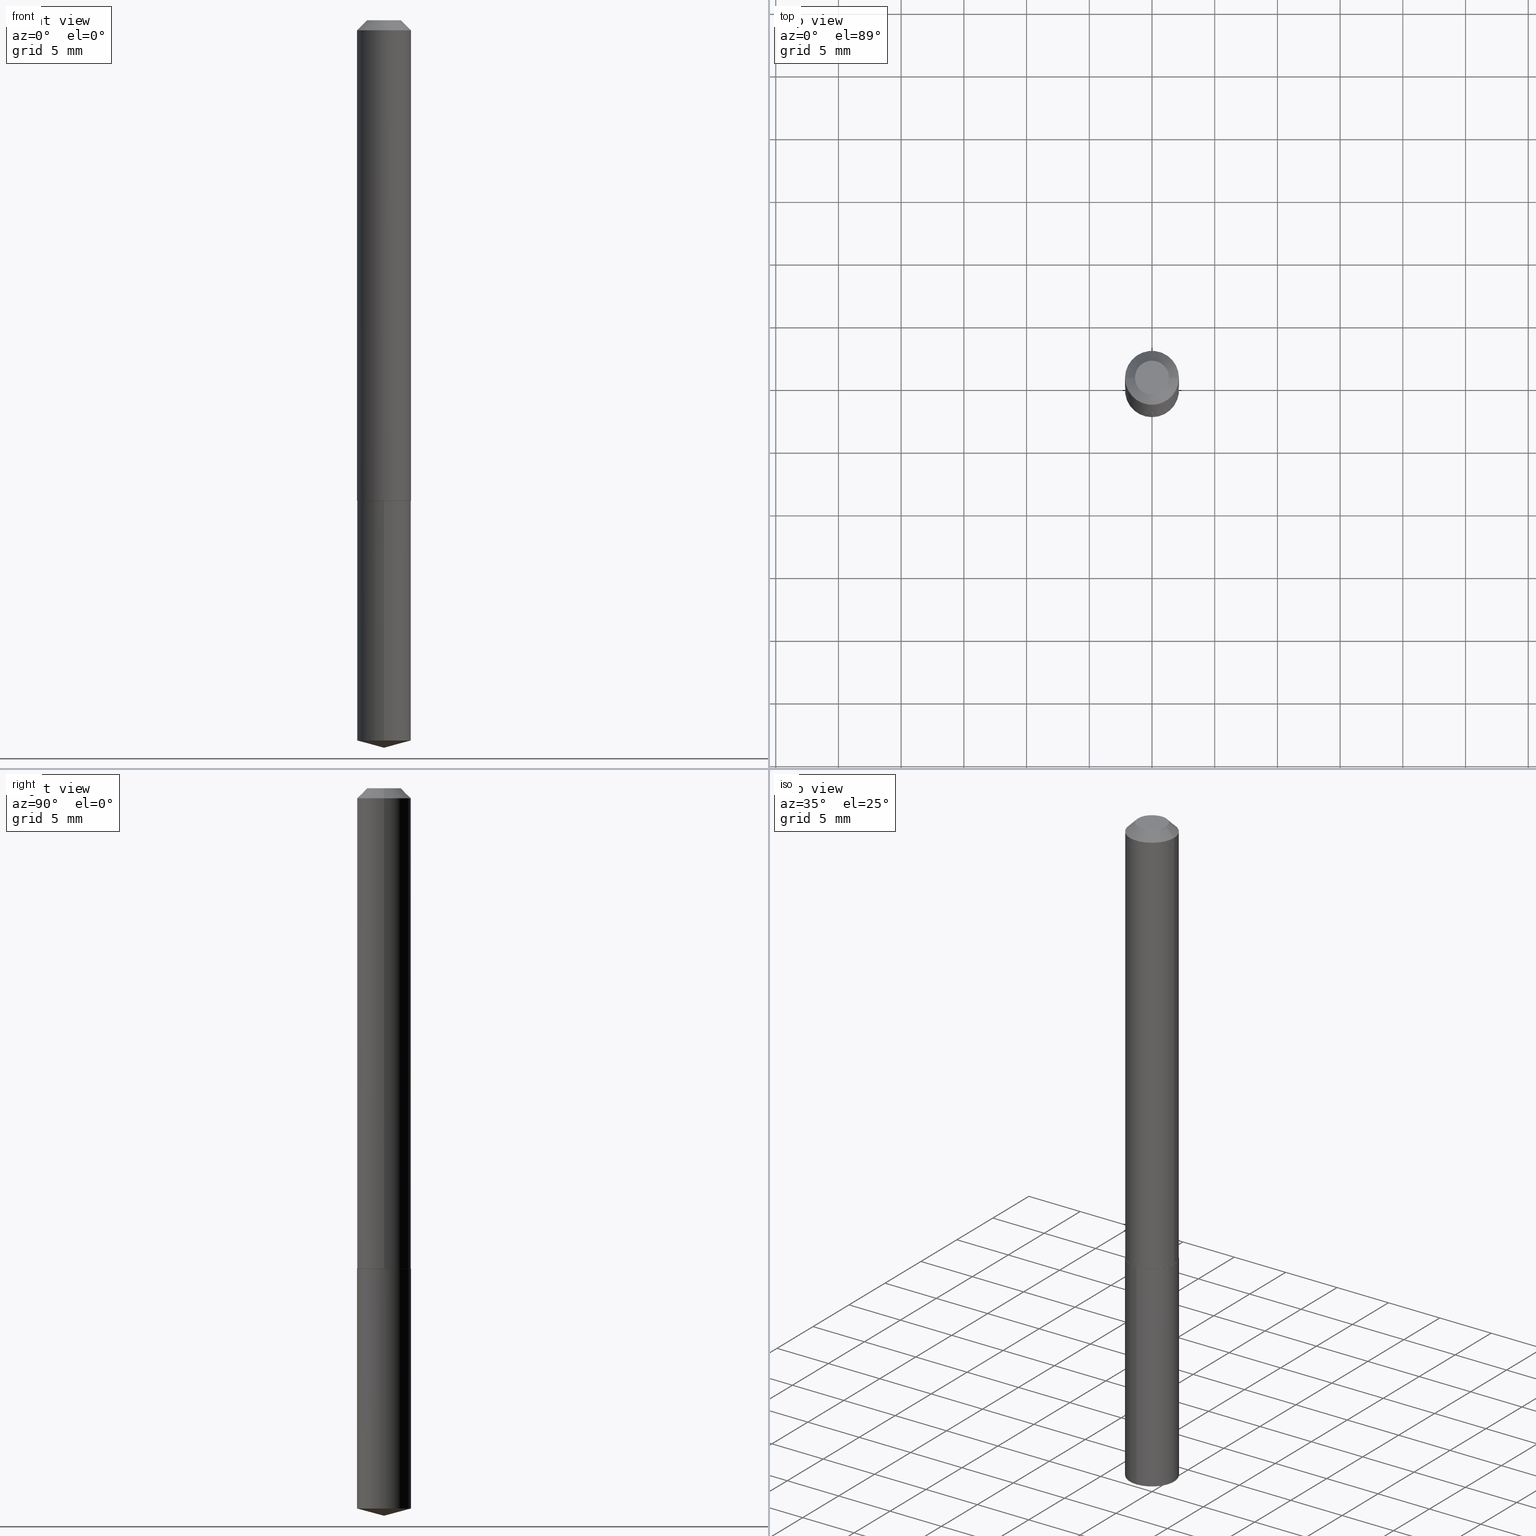
[diagram: canonical four-view strip — front | top / right | iso, engineering-drawing reading convention]
A machine part, canonical four-view strip (front | top / right | iso — engineering-drawing reading convention). The complete STEP part file that produces these views, byte-faithful:
ISO-10303-21;
HEADER;
FILE_DESCRIPTION (( 'STEP AP203' ),
    '1' );
FILE_NAME ('63051.STEP',
    '2024-04-23T08:46:22',
    ( '' ),
    ( '' ),
    'SwSTEP 2.0',
    'SolidWorks 2023',
    '' );
FILE_SCHEMA (( 'CONFIG_CONTROL_DESIGN' ));
ENDSEC;

DATA;
#1 = ADVANCED_FACE ( 'NONE', ( #94 ), #84, .T. ) ;
#2 = DESIGN_CONTEXT ( 'detailed design', #259, 'design' ) ;
#3 = VERTEX_POINT ( 'NONE', #327 ) ;
#4 = APPROVAL ( #52, 'UNSPECIFIED' ) ;
#5 = CALENDAR_DATE ( 2024, 23, 4 ) ;
#6 = PERSON_AND_ORGANIZATION ( #339, #67 ) ;
#7 = CARTESIAN_POINT ( 'NONE',  ( -0.08465000000000001690, 4.819989988272935042E-16, -0.03125000000000020123 ) ) ;
#8 = PERSON_AND_ORGANIZATION_ROLE ( 'creator' ) ;
#9 = VERTEX_POINT ( 'NONE', #299 ) ;
#10 = AXIS2_PLACEMENT_3D ( 'NONE', #365, #239, #341 ) ;
#11 = DIRECTION ( 'NONE',  ( -2.445468806185136877E-29, 3.491481338843145188E-15, 1.000000000000000000 ) ) ;
#12 = DIRECTION ( 'NONE',  ( 0.7071067811865452413, -7.319954787623248157E-15, -0.7071067811865497932 ) ) ;
#13 = ADVANCED_FACE ( 'NONE', ( #208 ), #57, .F. ) ;
#14 = APPROVAL_ROLE ( '' ) ;
#15 = DIRECTION ( 'NONE',  ( -2.445468806185136597E-29, 3.491481338843145583E-15, 1.000000000000000000 ) ) ;
#16 = AXIS2_PLACEMENT_3D ( 'NONE', #285, #68, #39 ) ;
#17 = MANIFOLD_SOLID_BREP ( 'Body-Move/Copy2[2]', #173 ) ;
#18 = AXIS2_PLACEMENT_3D ( 'NONE', #199, #40, #160 ) ;
#19 = EDGE_CURVE ( 'NONE', #88, #9, #139, .T. ) ;
#20 = CARTESIAN_POINT ( 'NONE',  ( 0.05340000000000000996, -5.281002702156046519E-16, 4.837354856663562123E-19 ) ) ;
#21 = EDGE_LOOP ( 'NONE', ( #233, #361, #349, #92 ) ) ;
#22 = ORIENTED_EDGE ( 'NONE', *, *, #381, .F. ) ;
#23 = DIRECTION ( 'NONE',  ( -1.000000000000000000, 6.982962677686265922E-15, -4.876176775795935793E-29 ) ) ;
#24 = DIRECTION ( 'NONE',  ( -2.445550995900255490E-29, 3.491363638493147218E-15, 1.000000000000000000 ) ) ;
#25 = DIRECTION ( 'NONE',  ( 1.000000000000000000, -6.982962677686265922E-15, 4.876176775795935793E-29 ) ) ;
#26 = AXIS2_PLACEMENT_3D ( 'NONE', #315, #357, #378 ) ;
#27 = CARTESIAN_POINT ( 'NONE',  ( 0.000000000000000000, 0.000000000000000000, 0.000000000000000000 ) ) ;
#28 = LINE ( 'NONE', #109, #99 ) ;
#29 = APPROVAL_ROLE ( '' ) ;
#30 = ADVANCED_FACE ( 'NONE', ( #260 ), #204, .F. ) ;
#31 = CARTESIAN_POINT ( 'NONE',  ( 5.584417872645754205E-29, -7.972528868499102598E-15, -2.283500000000000085 ) ) ;
#32 = AXIS2_PLACEMENT_3D ( 'NONE', #183, #304, #343 ) ;
#33 = AXIS2_PLACEMENT_3D ( 'NONE', #229, #129, #320 ) ;
#34 = DIRECTION ( 'NONE',  ( -2.445468806185136597E-29, 3.491481338843145583E-15, 1.000000000000000000 ) ) ;
#35 = EDGE_CURVE ( 'NONE', #242, #87, #50, .T. ) ;
#36 = CC_DESIGN_PERSON_AND_ORGANIZATION_ASSIGNMENT ( #74, #8, ( #344 ) ) ;
#37 = DIRECTION ( 'NONE',  ( 1.000000000000000000, -6.982962677686266711E-15, 0.000000000000000000 ) ) ;
#38 = ORIENTED_EDGE ( 'NONE', *, *, #197, .F. ) ;
#39 = DIRECTION ( 'NONE',  ( 1.000000000000000000, -6.982962677686268288E-15, 0.000000000000000000 ) ) ;
#40 = DIRECTION ( 'NONE',  ( -2.445468806185136597E-29, 3.491481338843145583E-15, 1.000000000000000000 ) ) ;
#41 = AXIS2_PLACEMENT_3D ( 'NONE', #355, #348, #44 ) ;
#42 = ORIENTED_EDGE ( 'NONE', *, *, #136, .F. ) ;
#43 = CALENDAR_DATE ( 2024, 23, 4 ) ;
#44 = DIRECTION ( 'NONE',  ( 1.000000000000000000, -6.982962677686266711E-15, 0.000000000000000000 ) ) ;
#45 = DIRECTION ( 'NONE',  ( 1.000000000000000000, -6.982962677686268288E-15, 0.000000000000000000 ) ) ;
#46 = EDGE_LOOP ( 'NONE', ( #38, #313, #170, #151 ) ) ;
#47 = CYLINDRICAL_SURFACE ( 'NONE', #105, 0.08465000000000001690 ) ;
#48 = CIRCLE ( 'NONE', #142, 0.05340000000000000996 ) ;
#49 = CIRCLE ( 'NONE', #146, 0.08465000000000001690 ) ;
#50 = LINE ( 'NONE', #143, #379 ) ;
#51 = ORIENTED_EDGE ( 'NONE', *, *, #381, .T. ) ;
#52 = APPROVAL_STATUS ( 'not_yet_approved' ) ;
#53 = EDGE_LOOP ( 'NONE', ( #113, #338, #284, #318 ) ) ;
#54 = ORIENTED_EDGE ( 'NONE', *, *, #153, .T. ) ;
#55 = CARTESIAN_POINT ( 'NONE',  ( 6.014744258209616094E-16, 0.08464999999999475722, -1.507900000000000240 ) ) ;
#56 = FACE_OUTER_BOUND ( 'NONE', #53, .T. ) ;
#57 = PLANE ( 'NONE',  #133 ) ;
#58 = ADVANCED_FACE ( 'NONE', ( #303 ), #125, .T. ) ;
#59 = CALENDAR_DATE ( 2024, 23, 4 ) ;
#60 = CARTESIAN_POINT ( 'NONE',  ( -1.182960040634188829E-47, 1.688953421129311321E-33, 4.837354856632064502E-19 ) ) ;
#61 = CARTESIAN_POINT ( 'NONE',  ( 6.014744258209803449E-16, 0.08464999999999213431, -2.260818100860706448 ) ) ;
#62 = CC_DESIGN_APPROVAL ( #89, ( #232 ) ) ;
#63 = DIRECTION ( 'NONE',  ( 1.000000000000000000, -6.982962677686266711E-15, 4.876223320448993211E-29 ) ) ;
#64 = DIRECTION ( 'NONE',  ( -6.982962677686265922E-15, -1.000000000000000000, 3.227227399485248397E-15 ) ) ;
#65 = PERSON_AND_ORGANIZATION_ROLE ( 'design_owner' ) ;
#66 = DATE_AND_TIME ( #5, #241 ) ;
#67 = ORGANIZATION ( 'UNSPECIFIED', 'UNSPECIFIED', '' ) ;
#68 = DIRECTION ( 'NONE',  ( -2.445468806185136597E-29, 3.491481338843145583E-15, 1.000000000000000000 ) ) ;
#69 = ADVANCED_FACE ( 'NONE', ( #312 ), #317, .T. ) ;
#70 = APPLICATION_PROTOCOL_DEFINITION ( 'international standard', 'config_control_design', 1994, #295 ) ;
#71 = EDGE_CURVE ( 'NONE', #347, #161, #48, .T. ) ;
#72 = DIRECTION ( 'NONE',  ( -2.445550995900255490E-29, 3.491363638493147218E-15, 1.000000000000000000 ) ) ;
#73 = ORIENTED_EDGE ( 'NONE', *, *, #153, .F. ) ;
#74 = PERSON_AND_ORGANIZATION ( #339, #67 ) ;
#75 = CARTESIAN_POINT ( 'NONE',  ( -0.08465000000000018343, -4.661584544351232390E-15, -1.507400000000000073 ) ) ;
#76 = CIRCLE ( 'NONE', #10, 0.05340000000000000996 ) ;
#77 = DIRECTION ( 'NONE',  ( 2.445468806185136597E-29, -3.491481338843145583E-15, -1.000000000000000000 ) ) ;
#78 = CARTESIAN_POINT ( 'NONE',  ( 3.686299678443475330E-29, -5.263058970172158007E-15, -1.507400000000000073 ) ) ;
#79 = DIRECTION ( 'NONE',  ( -6.982962677686265922E-15, -1.000000000000000000, 3.227227399485248397E-15 ) ) ;
#80 = CARTESIAN_POINT ( 'NONE',  ( 3.687522412846567571E-29, -5.264804710841579511E-15, -1.507900000000000018 ) ) ;
#81 = DIRECTION ( 'NONE',  ( -6.982962677686266711E-15, -1.000000000000000000, 3.510303681827577719E-15 ) ) ;
#82 = CIRCLE ( 'NONE', #114, 0.08465000000000001690 ) ;
#83 = AXIS2_PLACEMENT_3D ( 'NONE', #164, #72, #79 ) ;
#84 = CYLINDRICAL_SURFACE ( 'NONE', #218, 0.08465000000000010016 ) ;
#85 = EDGE_CURVE ( 'NONE', #130, #168, #275, .T. ) ;
#86 = PERSON_AND_ORGANIZATION ( #339, #67 ) ;
#87 = VERTEX_POINT ( 'NONE', #335 ) ;
#88 = VERTEX_POINT ( 'NONE', #61 ) ;
#89 = APPROVAL ( #278, 'UNSPECIFIED' ) ;
#90 = PRODUCT_DEFINITION_SHAPE ( 'NONE', 'NONE',  #232 ) ;
#91 = ORIENTED_EDGE ( 'NONE', *, *, #85, .T. ) ;
#92 = ORIENTED_EDGE ( 'NONE', *, *, #184, .F. ) ;
#93 = PERSON_AND_ORGANIZATION ( #339, #67 ) ;
#94 = FACE_OUTER_BOUND ( 'NONE', #274, .T. ) ;
#95 = DATE_AND_TIME ( #59, #269 ) ;
#96 = CONICAL_SURFACE ( 'NONE', #245, 0.08465000000000001690, 0.7853981633974450594 ) ;
#97 = EDGE_LOOP ( 'NONE', ( #322, #216, #247, #266 ) ) ;
#98 = DIRECTION ( 'NONE',  ( 1.000000000000000000, -6.982962677686265922E-15, 4.876176775795935232E-29 ) ) ;
#99 = VECTOR ( 'NONE', #321, 39.37007874015748143 ) ;
#100 = APPROVAL ( #207, 'UNSPECIFIED' ) ;
#101 = CC_DESIGN_SECURITY_CLASSIFICATION ( #123, ( #344 ) ) ;
#102 = DIRECTION ( 'NONE',  ( -6.982962677686266711E-15, -1.000000000000000000, 3.510303681827577719E-15 ) ) ;
#103 = CARTESIAN_POINT ( 'NONE',  ( 0.000000000000000000, 0.000000000000000000, 0.000000000000000000 ) ) ;
#104 = CIRCLE ( 'NONE', #32, 0.08465000000000018343 ) ;
#105 = AXIS2_PLACEMENT_3D ( 'NONE', #234, #165, #283 ) ;
#106 = DIRECTION ( 'NONE',  ( -2.445550995900255490E-29, 3.491363638493147218E-15, 1.000000000000000000 ) ) ;
#107 = ORIENTED_EDGE ( 'NONE', *, *, #367, .T. ) ;
#108 = EDGE_CURVE ( 'NONE', #88, #242, #187, .T. ) ;
#109 = CARTESIAN_POINT ( 'NONE',  ( -0.08465000000000010016, 6.014744258209255191E-16, -4.163878553900782059E-30 ) ) ;
#110 = AXIS2_PLACEMENT_3D ( 'NONE', #377, #382, #45 ) ;
#111 = FACE_OUTER_BOUND ( 'NONE', #21, .T. ) ;
#112 = LINE ( 'NONE', #192, #189 ) ;
#113 = ORIENTED_EDGE ( 'NONE', *, *, #116, .T. ) ;
#114 = AXIS2_PLACEMENT_3D ( 'NONE', #80, #24, #64 ) ;
#115 = LOCAL_TIME ( 4, 46, 22.00000000000000000, #376 ) ;
#116 = EDGE_CURVE ( 'NONE', #363, #369, #193, .T. ) ;
#117 = DIRECTION ( 'NONE',  ( -2.445550995900255490E-29, 3.491363638493147218E-15, 1.000000000000000000 ) ) ;
#118 = DIRECTION ( 'NONE',  ( -2.445468806185136597E-29, 3.491481338843145583E-15, 1.000000000000000000 ) ) ;
#119 = AXIS2_PLACEMENT_3D ( 'NONE', #78, #255, #37 ) ;
#120 = CARTESIAN_POINT ( 'NONE',  ( -5.914800203170944143E-48, 8.444767105646556605E-34, 2.418677428316032251E-19 ) ) ;
#121 = CC_DESIGN_APPROVAL ( #4, ( #123 ) ) ;
#122 = EDGE_CURVE ( 'NONE', #347, #236, #135, .T. ) ;
#123 = SECURITY_CLASSIFICATION ( '', '', #380 ) ;
#124 = ADVANCED_FACE ( 'NONE', ( #230 ), #296, .T. ) ;
#125 = CYLINDRICAL_SURFACE ( 'NONE', #227, 0.08465000000000010016 ) ;
#126 = CC_DESIGN_DATE_AND_TIME_ASSIGNMENT ( #287, #198, ( #123 ) ) ;
#127 = CARTESIAN_POINT ( 'NONE',  ( 5.528822024237795342E-29, -7.893515590949963390E-15, -2.260818100860706004 ) ) ;
#128 = VECTOR ( 'NONE', #353, 39.37007874015748143 ) ;
#129 = DIRECTION ( 'NONE',  ( 2.445550995900255209E-29, -3.491363638493147218E-15, -1.000000000000000000 ) ) ;
#130 = VERTEX_POINT ( 'NONE', #220 ) ;
#131 = DIRECTION ( 'NONE',  ( -6.982962677686265922E-15, -1.000000000000000000, 3.227227399485248397E-15 ) ) ;
#132 = ORIENTED_EDGE ( 'NONE', *, *, #200, .T. ) ;
#133 = AXIS2_PLACEMENT_3D ( 'NONE', #120, #238, #23 ) ;
#134 = AXIS2_PLACEMENT_3D ( 'NONE', #103, #222, #243 ) ;
#135 = LINE ( 'NONE', #195, #281 ) ;
#136 = EDGE_CURVE ( 'NONE', #161, #250, #244, .T. ) ;
#137 = CYLINDRICAL_SURFACE ( 'NONE', #319, 0.08465000000000001690 ) ;
#138 = EDGE_CURVE ( 'NONE', #168, #130, #104, .T. ) ;
#139 = LINE ( 'NONE', #55, #268 ) ;
#140 = CALENDAR_DATE ( 2024, 23, 4 ) ;
#141 = DIMENSIONAL_EXPONENTS ( 1.000000000000000000, 0.000000000000000000, 0.000000000000000000, 0.000000000000000000, 0.000000000000000000, 0.000000000000000000, 0.000000000000000000 ) ;
#142 = AXIS2_PLACEMENT_3D ( 'NONE', #60, #342, #63 ) ;
#143 = CARTESIAN_POINT ( 'NONE',  ( -5.911077906661056270E-16, -0.08465000000000527658, -1.507899999999999796 ) ) ;
#144 = DIRECTION ( 'NONE',  ( -6.745023994389845444E-15, -0.9659258262890685343, 0.2588190451025198513 ) ) ;
#145 = ORIENTED_EDGE ( 'NONE', *, *, #122, .F. ) ;
#146 = AXIS2_PLACEMENT_3D ( 'NONE', #264, #15, #326 ) ;
#147 =( LENGTH_UNIT ( ) NAMED_UNIT ( * ) SI_UNIT ( $, .METRE. ) );
#148 = ADVANCED_FACE ( 'NONE', ( #280 ), #309, .T. ) ;
#149 = CARTESIAN_POINT ( 'NONE',  ( -0.08415000000000051605, -4.664233771525342013E-15, -1.507900000000000018 ) ) ;
#150 = DIRECTION ( 'NONE',  ( 2.445468806185136597E-29, -3.491481338843145583E-15, -1.000000000000000000 ) ) ;
#151 = ORIENTED_EDGE ( 'NONE', *, *, #138, .F. ) ;
#152 = AXIS2_PLACEMENT_3D ( 'NONE', #217, #150, #186 ) ;
#153 = EDGE_CURVE ( 'NONE', #87, #9, #82, .T. ) ;
#154 = CARTESIAN_POINT ( 'NONE',  ( 0.08415000000000051605, -5.852421020168882067E-15, -1.507900000000000018 ) ) ;
#155 = LINE ( 'NONE', #159, #337 ) ;
#156 = ORIENTED_EDGE ( 'NONE', *, *, #367, .F. ) ;
#157 = ORIENTED_EDGE ( 'NONE', *, *, #19, .T. ) ;
#158 = LOCAL_TIME ( 4, 46, 22.00000000000000000, #388 ) ;
#159 = CARTESIAN_POINT ( 'NONE',  ( 0.08465000000000018343, -5.854166760838301993E-15, -1.507400000000000073 ) ) ;
#160 = DIRECTION ( 'NONE',  ( 1.000000000000000000, -6.982962677686265922E-15, 0.000000000000000000 ) ) ;
#161 = VERTEX_POINT ( 'NONE', #375 ) ;
#162 = CARTESIAN_POINT ( 'NONE',  ( 7.642090019328601786E-31, -1.091087918388490144E-16, -0.03125000000000020123 ) ) ;
#163 = ORIENTED_EDGE ( 'NONE', *, *, #116, .F. ) ;
#164 = CARTESIAN_POINT ( 'NONE',  ( 5.528822024237795342E-29, -7.893515590949963390E-15, -2.260818100860706004 ) ) ;
#165 = DIRECTION ( 'NONE',  ( -2.445550995900255490E-29, 3.491363638493147218E-15, 1.000000000000000000 ) ) ;
#166 = APPROVAL_PERSON_ORGANIZATION ( #93, #100, #29 ) ;
#167 = ORIENTED_EDGE ( 'NONE', *, *, #122, .T. ) ;
#168 = VERTEX_POINT ( 'NONE', #191 ) ;
#169 = ADVANCED_BREP_SHAPE_REPRESENTATION ( '63051', ( #272, #17, #134 ), #235 ) ;
#170 = ORIENTED_EDGE ( 'NONE', *, *, #171, .T. ) ;
#171 = EDGE_CURVE ( 'NONE', #363, #130, #155, .T. ) ;
#172 = EDGE_LOOP ( 'NONE', ( #145, #22, #387, #351 ) ) ;
#173 = CLOSED_SHELL ( 'NONE', ( #69, #1, #228, #30, #124, #58, #240, #13 ) ) ;
#174 = DIRECTION ( 'NONE',  ( -2.445550995900255209E-29, 3.491363638493147218E-15, 1.000000000000000000 ) ) ;
#175 = COORDINATED_UNIVERSAL_TIME_OFFSET ( 5, 0, .BEHIND. ) ;
#176 = DIRECTION ( 'NONE',  ( -2.445550995900255490E-29, 3.491363638493147218E-15, 1.000000000000000000 ) ) ;
#177 = DIRECTION ( 'NONE',  ( -2.438088387897960049E-29, 3.491481338843145188E-15, 1.000000000000000000 ) ) ;
#178 = PERSON_AND_ORGANIZATION ( #339, #67 ) ;
#179 = LENGTH_MEASURE_WITH_UNIT ( LENGTH_MEASURE( 0.02539999999999999897 ), #147 );
#180 = CARTESIAN_POINT ( 'NONE',  ( 3.686299678443475330E-29, -5.263058970172158007E-15, -1.507400000000000073 ) ) ;
#181 = AXIS2_PLACEMENT_3D ( 'NONE', #373, #117, #102 ) ;
#182 = CIRCLE ( 'NONE', #18, 0.08465000000000001690 ) ;
#183 = CARTESIAN_POINT ( 'NONE',  ( 3.686299678443475330E-29, -5.263058970172158007E-15, -1.507400000000000073 ) ) ;
#184 = EDGE_CURVE ( 'NONE', #9, #87, #310, .T. ) ;
#185 = ORIENTED_EDGE ( 'NONE', *, *, #108, .F. ) ;
#186 = DIRECTION ( 'NONE',  ( -1.000000000000000000, 6.982962677686265922E-15, 0.000000000000000000 ) ) ;
#187 = CIRCLE ( 'NONE', #324, 0.08465000000000001690 ) ;
#188 = APPLICATION_PROTOCOL_DEFINITION ( 'international standard', 'config_control_design', 1994, #259 ) ;
#189 = VECTOR ( 'NONE', #144, 39.37007874015748143 ) ;
#190 = APPROVAL_DATE_TIME ( #66, #100 ) ;
#191 = CARTESIAN_POINT ( 'NONE',  ( -0.08465000000000018343, -4.661584544351232390E-15, -1.507400000000000073 ) ) ;
#192 = CARTESIAN_POINT ( 'NONE',  ( 5.584167831395378527E-29, -7.972883829214627040E-15, -2.283500000000000085 ) ) ;
#193 = CIRCLE ( 'NONE', #16, 0.08415000000000051605 ) ;
#194 = PLANE ( 'NONE',  #33 ) ;
#195 = CARTESIAN_POINT ( 'NONE',  ( 0.08465000000000001690, -6.898499473502092843E-16, -0.03125000000000020123 ) ) ;
#196 = LINE ( 'NONE', #291, #219 ) ;
#197 = EDGE_CURVE ( 'NONE', #369, #168, #292, .T. ) ;
#198 = DATE_TIME_ROLE ( 'classification_date' ) ;
#199 = CARTESIAN_POINT ( 'NONE',  ( 7.642090019328601786E-31, -1.091087918388490144E-16, -0.03125000000000020123 ) ) ;
#200 = EDGE_CURVE ( 'NONE', #168, #250, #28, .T. ) ;
#201 = PERSON_AND_ORGANIZATION ( #339, #67 ) ;
#202 = DIRECTION ( 'NONE',  ( 1.000000000000000000, -6.982962677686265922E-15, 4.876176775795935232E-29 ) ) ;
#203 = ORIENTED_EDGE ( 'NONE', *, *, #71, .F. ) ;
#204 = PLANE ( 'NONE',  #253 ) ;
#205 = ORIENTED_EDGE ( 'NONE', *, *, #298, .T. ) ;
#206 = EDGE_LOOP ( 'NONE', ( #156, #205, #185 ) ) ;
#207 = APPROVAL_STATUS ( 'not_yet_approved' ) ;
#208 = FACE_OUTER_BOUND ( 'NONE', #279, .T. ) ;
#209 = APPROVAL_DATE_TIME ( #95, #89 ) ;
#210 = DIRECTION ( 'NONE',  ( -2.445550995900255209E-29, 3.491363638493147218E-15, 1.000000000000000000 ) ) ;
#211 = ADVANCED_FACE ( 'NONE', ( #226 ), #194, .F. ) ;
#212 = DIRECTION ( 'NONE',  ( 1.000000000000000000, -6.982962677686266711E-15, 0.000000000000000000 ) ) ;
#213 = EDGE_CURVE ( 'NONE', #369, #363, #331, .T. ) ;
#214 = CONICAL_SURFACE ( 'NONE', #41, 0.08465000000000018343, 0.7853981633972092480 ) ;
#215 = ORIENTED_EDGE ( 'NONE', *, *, #277, .F. ) ;
#216 = ORIENTED_EDGE ( 'NONE', *, *, #138, .T. ) ;
#217 = CARTESIAN_POINT ( 'NONE',  ( 7.642090019328601786E-31, -1.091087918388490144E-16, -0.03125000000000020123 ) ) ;
#218 = AXIS2_PLACEMENT_3D ( 'NONE', #27, #118, #202 ) ;
#219 = VECTOR ( 'NONE', #11, 39.37007874015748143 ) ;
#220 = CARTESIAN_POINT ( 'NONE',  ( 0.08465000000000018343, -5.854166760838301993E-15, -1.507400000000000073 ) ) ;
#221 = EDGE_CURVE ( 'NONE', #250, #236, #49, .T. ) ;
#222 = DIRECTION ( 'NONE',  ( 0.000000000000000000, 0.000000000000000000, 1.000000000000000000 ) ) ;
#223 = ORIENTED_EDGE ( 'NONE', *, *, #265, .F. ) ;
#224 = EDGE_LOOP ( 'NONE', ( #163, #258 ) ) ;
#225 = COORDINATED_UNIVERSAL_TIME_OFFSET ( 5, 0, .BEHIND. ) ;
#226 = FACE_OUTER_BOUND ( 'NONE', #334, .T. ) ;
#227 = AXIS2_PLACEMENT_3D ( 'NONE', #332, #34, #98 ) ;
#228 = ADVANCED_FACE ( 'NONE', ( #56 ), #214, .T. ) ;
#229 = CARTESIAN_POINT ( 'NONE',  ( 3.687522412846567571E-29, -5.264804710841579511E-15, -1.507900000000000018 ) ) ;
#230 = FACE_OUTER_BOUND ( 'NONE', #46, .T. ) ;
#231 = PERSON_AND_ORGANIZATION_ROLE ( 'design_supplier' ) ;
#232 = PRODUCT_DEFINITION ( 'UNKNOWN', '', #344, #2 ) ;
#233 = ORIENTED_EDGE ( 'NONE', *, *, #19, .F. ) ;
#234 = CARTESIAN_POINT ( 'NONE',  ( 3.687522412846567571E-29, -5.264804710841579511E-15, -1.507900000000000018 ) ) ;
#235 =( GEOMETRIC_REPRESENTATION_CONTEXT ( 3 ) GLOBAL_UNCERTAINTY_ASSIGNED_CONTEXT ( ( #237 ) ) GLOBAL_UNIT_ASSIGNED_CONTEXT ( ( #308, #267, #333 ) ) REPRESENTATION_CONTEXT ( 'NONE', 'WORKASPACE' ) );
#236 = VERTEX_POINT ( 'NONE', #252 ) ;
#237 = UNCERTAINTY_MEASURE_WITH_UNIT (LENGTH_MEASURE( 1.000000000000000082E-05 ), #308, 'distance_accuracy_value', 'NONE');
#238 = DIRECTION ( 'NONE',  ( 2.438088387897960049E-29, -3.491481338843145188E-15, -1.000000000000000000 ) ) ;
#239 = DIRECTION ( 'NONE',  ( -2.445468806185136597E-29, 3.491481338843145583E-15, 1.000000000000000000 ) ) ;
#240 = ADVANCED_FACE ( 'NONE', ( #297 ), #96, .T. ) ;
#241 = LOCAL_TIME ( 4, 46, 22.00000000000000000, #225 ) ;
#242 = VERTEX_POINT ( 'NONE', #374 ) ;
#243 = DIRECTION ( 'NONE',  ( 1.000000000000000000, 0.000000000000000000, 0.000000000000000000 ) ) ;
#244 = LINE ( 'NONE', #7, #128 ) ;
#245 = AXIS2_PLACEMENT_3D ( 'NONE', #162, #77, #249 ) ;
#246 = CC_DESIGN_DATE_AND_TIME_ASSIGNMENT ( #329, #366, ( #232 ) ) ;
#247 = ORIENTED_EDGE ( 'NONE', *, *, #277, .T. ) ;
#248 = DIRECTION ( 'NONE',  ( 0.7071067811863784858, -2.468850131080486462E-15, 0.7071067811867165487 ) ) ;
#249 = DIRECTION ( 'NONE',  ( -1.000000000000000000, 6.982962677686265922E-15, 0.000000000000000000 ) ) ;
#250 = VERTEX_POINT ( 'NONE', #288 ) ;
#251 = PERSON_AND_ORGANIZATION ( #339, #67 ) ;
#252 = CARTESIAN_POINT ( 'NONE',  ( 0.08465000000000001690, -7.002165825049916069E-16, -0.03125000000000020123 ) ) ;
#253 = AXIS2_PLACEMENT_3D ( 'NONE', #301, #177, #25 ) ;
#254 = LOCAL_TIME ( 4, 46, 22.00000000000000000, #293 ) ;
#255 = DIRECTION ( 'NONE',  ( -2.445468806185136597E-29, 3.491481338843145583E-15, 1.000000000000000000 ) ) ;
#256 = DATE_AND_TIME ( #384, #158 ) ;
#257 = FACE_OUTER_BOUND ( 'NONE', #360, .T. ) ;
#258 = ORIENTED_EDGE ( 'NONE', *, *, #213, .F. ) ;
#259 = APPLICATION_CONTEXT ( 'configuration controlled 3d designs of mechanical parts and assemblies' ) ;
#260 = FACE_OUTER_BOUND ( 'NONE', #224, .T. ) ;
#261 = AXIS2_PLACEMENT_3D ( 'NONE', #358, #106, #81 ) ;
#262 = CONICAL_SURFACE ( 'NONE', #261, 146.9311341562576274, 1.308996938995751647 ) ;
#263 = PRODUCT_RELATED_PRODUCT_CATEGORY ( 'detail', '', ( #270 ) ) ;
#264 = CARTESIAN_POINT ( 'NONE',  ( 7.642090019328601786E-31, -1.091087918388490144E-16, -0.03125000000000020123 ) ) ;
#265 = EDGE_CURVE ( 'NONE', #242, #88, #352, .T. ) ;
#266 = ORIENTED_EDGE ( 'NONE', *, *, #221, .F. ) ;
#267 =( NAMED_UNIT ( * ) PLANE_ANGLE_UNIT ( ) SI_UNIT ( $, .RADIAN. ) );
#268 = VECTOR ( 'NONE', #210, 39.37007874015748143 ) ;
#269 = LOCAL_TIME ( 4, 46, 22.00000000000000000, #175 ) ;
#270 = PRODUCT ( '63051', '63051', '', ( #276 ) ) ;
#271 = DIRECTION ( 'NONE',  ( -2.445468806185136597E-29, 3.491481338843145583E-15, 1.000000000000000000 ) ) ;
#272 = MANIFOLD_SOLID_BREP ( 'Body-Move/Copy2[1]', #390 ) ;
#273 = CC_DESIGN_PERSON_AND_ORGANIZATION_ASSIGNMENT ( #372, #65, ( #270 ) ) ;
#274 = EDGE_LOOP ( 'NONE', ( #91, #132, #328, #215 ) ) ;
#275 = CIRCLE ( 'NONE', #368, 0.08465000000000018343 ) ;
#276 = MECHANICAL_CONTEXT ( 'NONE', #295, 'mechanical' ) ;
#277 = EDGE_CURVE ( 'NONE', #130, #236, #196, .T. ) ;
#278 = APPROVAL_STATUS ( 'not_yet_approved' ) ;
#279 = EDGE_LOOP ( 'NONE', ( #51, #371 ) ) ;
#280 = FACE_OUTER_BOUND ( 'NONE', #206, .T. ) ;
#281 = VECTOR ( 'NONE', #12, 39.37007874015748143 ) ;
#282 = VECTOR ( 'NONE', #311, 39.37007874015748854 ) ;
#283 = DIRECTION ( 'NONE',  ( -6.982962677686265922E-15, -1.000000000000000000, 3.227227399485248397E-15 ) ) ;
#284 = ORIENTED_EDGE ( 'NONE', *, *, #85, .F. ) ;
#285 = CARTESIAN_POINT ( 'NONE',  ( 3.687522412846567571E-29, -5.264804710841579511E-15, -1.507900000000000018 ) ) ;
#286 = ORIENTED_EDGE ( 'NONE', *, *, #184, .T. ) ;
#287 = DATE_AND_TIME ( #43, #115 ) ;
#288 = CARTESIAN_POINT ( 'NONE',  ( -0.08465000000000001690, -2.084609455184576753E-15, -0.03125000000000020123 ) ) ;
#289 = ADVANCED_FACE ( 'NONE', ( #111 ), #137, .T. ) ;
#290 = PERSON_AND_ORGANIZATION_ROLE ( 'classification_officer' ) ;
#291 = CARTESIAN_POINT ( 'NONE',  ( 0.08465000000000010016, -5.911077906661430979E-16, 4.127683640711264116E-30 ) ) ;
#292 = LINE ( 'NONE', #75, #370 ) ;
#293 = COORDINATED_UNIVERSAL_TIME_OFFSET ( 5, 0, .BEHIND. ) ;
#294 = ORIENTED_EDGE ( 'NONE', *, *, #305, .T. ) ;
#295 = APPLICATION_CONTEXT ( 'configuration controlled 3d designs of mechanical parts and assemblies' ) ;
#296 = CONICAL_SURFACE ( 'NONE', #119, 0.08465000000000018343, 0.7853981633972092480 ) ;
#297 = FACE_OUTER_BOUND ( 'NONE', #172, .T. ) ;
#298 = EDGE_CURVE ( 'NONE', #3, #242, #112, .T. ) ;
#299 = CARTESIAN_POINT ( 'NONE',  ( 6.014744258209802463E-16, 0.08464999999999475722, -1.507900000000000240 ) ) ;
#300 = EDGE_LOOP ( 'NONE', ( #383, #157, #73, #330 ) ) ;
#301 = CARTESIAN_POINT ( 'NONE',  ( 3.687522412846567571E-29, -5.264804710841579511E-15, -1.507900000000000018 ) ) ;
#302 = APPROVAL_PERSON_ORGANIZATION ( #6, #89, #364 ) ;
#303 = FACE_OUTER_BOUND ( 'NONE', #97, .T. ) ;
#304 = DIRECTION ( 'NONE',  ( -2.445468806185136597E-29, 3.491481338843145583E-15, 1.000000000000000000 ) ) ;
#305 = EDGE_CURVE ( 'NONE', #236, #250, #182, .T. ) ;
#306 = PERSON_AND_ORGANIZATION_ROLE ( 'creator' ) ;
#307 = CC_DESIGN_PERSON_AND_ORGANIZATION_ASSIGNMENT ( #178, #306, ( #232 ) ) ;
#308 =( CONVERSION_BASED_UNIT ( 'INCH', #179 ) LENGTH_UNIT ( ) NAMED_UNIT ( #141 ) );
#309 = CONICAL_SURFACE ( 'NONE', #181, 146.9311341562576274, 1.308996938995751647 ) ;
#310 = CIRCLE ( 'NONE', #26, 0.08465000000000001690 ) ;
#311 = DIRECTION ( 'NONE',  ( 6.863315791527699781E-15, 0.9659258262890704216, 0.2588190451025130789 ) ) ;
#312 = FACE_OUTER_BOUND ( 'NONE', #340, .T. ) ;
#313 = ORIENTED_EDGE ( 'NONE', *, *, #213, .T. ) ;
#314 = APPROVAL_PERSON_ORGANIZATION ( #86, #4, #14 ) ;
#315 = CARTESIAN_POINT ( 'NONE',  ( 3.687522412846567571E-29, -5.264804710841579511E-15, -1.507900000000000018 ) ) ;
#316 = DIRECTION ( 'NONE',  ( -6.982962677686265922E-15, -1.000000000000000000, 3.227227399485248397E-15 ) ) ;
#317 = CONICAL_SURFACE ( 'NONE', #152, 0.08465000000000001690, 0.7853981633974450594 ) ;
#318 = ORIENTED_EDGE ( 'NONE', *, *, #171, .F. ) ;
#319 = AXIS2_PLACEMENT_3D ( 'NONE', #356, #176, #131 ) ;
#320 = DIRECTION ( 'NONE',  ( 6.982962677686265922E-15, 1.000000000000000000, -3.491363638493147218E-15 ) ) ;
#321 = DIRECTION ( 'NONE',  ( -2.445468806185136877E-29, 3.491481338843145188E-15, 1.000000000000000000 ) ) ;
#322 = ORIENTED_EDGE ( 'NONE', *, *, #200, .F. ) ;
#323 = FACE_OUTER_BOUND ( 'NONE', #300, .T. ) ;
#324 = AXIS2_PLACEMENT_3D ( 'NONE', #127, #345, #316 ) ;
#325 = CC_DESIGN_APPROVAL ( #100, ( #344 ) ) ;
#326 = DIRECTION ( 'NONE',  ( 1.000000000000000000, -6.982962677686265922E-15, 0.000000000000000000 ) ) ;
#327 = CARTESIAN_POINT ( 'NONE',  ( 5.584415699138233784E-29, -7.972528868499101020E-15, -2.283500000000000085 ) ) ;
#328 = ORIENTED_EDGE ( 'NONE', *, *, #305, .F. ) ;
#329 = DATE_AND_TIME ( #140, #254 ) ;
#330 = ORIENTED_EDGE ( 'NONE', *, *, #35, .F. ) ;
#331 = CIRCLE ( 'NONE', #110, 0.08415000000000051605 ) ;
#332 = CARTESIAN_POINT ( 'NONE',  ( 0.000000000000000000, 0.000000000000000000, 0.000000000000000000 ) ) ;
#333 =( NAMED_UNIT ( * ) SI_UNIT ( $, .STERADIAN. ) SOLID_ANGLE_UNIT ( ) );
#334 = EDGE_LOOP ( 'NONE', ( #54, #286 ) ) ;
#335 = CARTESIAN_POINT ( 'NONE',  ( -5.911077906661056270E-16, -0.08465000000000527658, -1.507899999999999796 ) ) ;
#336 = ADVANCED_FACE ( 'NONE', ( #323 ), #47, .T. ) ;
#337 = VECTOR ( 'NONE', #248, 39.37007874015748143 ) ;
#338 = ORIENTED_EDGE ( 'NONE', *, *, #197, .T. ) ;
#339 = PERSON ( 'UNSPECIFIED', 'UNSPECIFIED', 'UNSPECIFIED', ('UNSPECIFIED'), ('UNSPECIFIED'), ('UNSPECIFIED') ) ;
#340 = EDGE_LOOP ( 'NONE', ( #203, #167, #294, #42 ) ) ;
#341 = DIRECTION ( 'NONE',  ( 1.000000000000000000, -6.982962677686266711E-15, 4.876223320448993211E-29 ) ) ;
#342 = DIRECTION ( 'NONE',  ( -2.445468806185136597E-29, 3.491481338843145583E-15, 1.000000000000000000 ) ) ;
#343 = DIRECTION ( 'NONE',  ( 1.000000000000000000, -6.982962677686266711E-15, 0.000000000000000000 ) ) ;
#344 = PRODUCT_DEFINITION_FORMATION_WITH_SPECIFIED_SOURCE ( 'ANY', '', #270, .NOT_KNOWN. ) ;
#345 = DIRECTION ( 'NONE',  ( -2.445550995900255490E-29, 3.491363638493147218E-15, 1.000000000000000000 ) ) ;
#346 = CC_DESIGN_PERSON_AND_ORGANIZATION_ASSIGNMENT ( #251, #231, ( #344 ) ) ;
#347 = VERTEX_POINT ( 'NONE', #20 ) ;
#348 = DIRECTION ( 'NONE',  ( -2.445468806185136597E-29, 3.491481338843145583E-15, 1.000000000000000000 ) ) ;
#349 = ORIENTED_EDGE ( 'NONE', *, *, #35, .T. ) ;
#350 = ADVANCED_FACE ( 'NONE', ( #257 ), #262, .T. ) ;
#351 = ORIENTED_EDGE ( 'NONE', *, *, #221, .T. ) ;
#352 = CIRCLE ( 'NONE', #83, 0.08465000000000001690 ) ;
#353 = DIRECTION ( 'NONE',  ( -0.7071067811865452413, 2.468850131082233000E-15, -0.7071067811865497932 ) ) ;
#354 = SHAPE_DEFINITION_REPRESENTATION ( #90, #169 ) ;
#355 = CARTESIAN_POINT ( 'NONE',  ( 3.686299678443475330E-29, -5.263058970172158007E-15, -1.507400000000000073 ) ) ;
#356 = CARTESIAN_POINT ( 'NONE',  ( 3.687522412846567571E-29, -5.264804710841579511E-15, -1.507900000000000018 ) ) ;
#357 = DIRECTION ( 'NONE',  ( -2.445550995900255490E-29, 3.491363638493147218E-15, 1.000000000000000000 ) ) ;
#358 = CARTESIAN_POINT ( 'NONE',  ( -9.069724350639680107E-28, 1.294825550091410630E-13, 37.08657874015747780 ) ) ;
#359 = CC_DESIGN_PERSON_AND_ORGANIZATION_ASSIGNMENT ( #201, #290, ( #123 ) ) ;
#360 = EDGE_LOOP ( 'NONE', ( #386, #107, #223 ) ) ;
#361 = ORIENTED_EDGE ( 'NONE', *, *, #108, .T. ) ;
#362 = APPROVAL_DATE_TIME ( #256, #4 ) ;
#363 = VERTEX_POINT ( 'NONE', #154 ) ;
#364 = APPROVAL_ROLE ( '' ) ;
#365 = CARTESIAN_POINT ( 'NONE',  ( -1.182960040634188829E-47, 1.688953421129311321E-33, 4.837354856632064502E-19 ) ) ;
#366 = DATE_TIME_ROLE ( 'creation_date' ) ;
#367 = EDGE_CURVE ( 'NONE', #3, #88, #389, .T. ) ;
#368 = AXIS2_PLACEMENT_3D ( 'NONE', #180, #271, #212 ) ;
#369 = VERTEX_POINT ( 'NONE', #149 ) ;
#370 = VECTOR ( 'NONE', #385, 39.37007874015748143 ) ;
#371 = ORIENTED_EDGE ( 'NONE', *, *, #71, .T. ) ;
#372 = PERSON_AND_ORGANIZATION ( #339, #67 ) ;
#373 = CARTESIAN_POINT ( 'NONE',  ( -9.069724350639680107E-28, 1.294825550091410630E-13, 37.08657874015747780 ) ) ;
#374 = CARTESIAN_POINT ( 'NONE',  ( -5.911077906660871874E-16, -0.08465000000000792724, -2.260818100860705560 ) ) ;
#375 = CARTESIAN_POINT ( 'NONE',  ( -0.05340000000000000996, 4.274446029078701865E-16, 4.837354856604081702E-19 ) ) ;
#376 = COORDINATED_UNIVERSAL_TIME_OFFSET ( 5, 0, .BEHIND. ) ;
#377 = CARTESIAN_POINT ( 'NONE',  ( 3.687522412846567571E-29, -5.264804710841579511E-15, -1.507900000000000018 ) ) ;
#378 = DIRECTION ( 'NONE',  ( -6.982962677686265922E-15, -1.000000000000000000, 3.227227399485248397E-15 ) ) ;
#379 = VECTOR ( 'NONE', #174, 39.37007874015748143 ) ;
#380 = SECURITY_CLASSIFICATION_LEVEL ( 'unclassified' ) ;
#381 = EDGE_CURVE ( 'NONE', #161, #347, #76, .T. ) ;
#382 = DIRECTION ( 'NONE',  ( -2.445468806185136597E-29, 3.491481338843145583E-15, 1.000000000000000000 ) ) ;
#383 = ORIENTED_EDGE ( 'NONE', *, *, #265, .T. ) ;
#384 = CALENDAR_DATE ( 2024, 23, 4 ) ;
#385 = DIRECTION ( 'NONE',  ( -0.7071067811863784858, 7.493145998869743582E-15, 0.7071067811867165487 ) ) ;
#386 = ORIENTED_EDGE ( 'NONE', *, *, #298, .F. ) ;
#387 = ORIENTED_EDGE ( 'NONE', *, *, #136, .T. ) ;
#388 = COORDINATED_UNIVERSAL_TIME_OFFSET ( 5, 0, .BEHIND. ) ;
#389 = LINE ( 'NONE', #31, #282 ) ;
#390 = CLOSED_SHELL ( 'NONE', ( #336, #350, #148, #289, #211 ) ) ;
ENDSEC;
END-ISO-10303-21;
